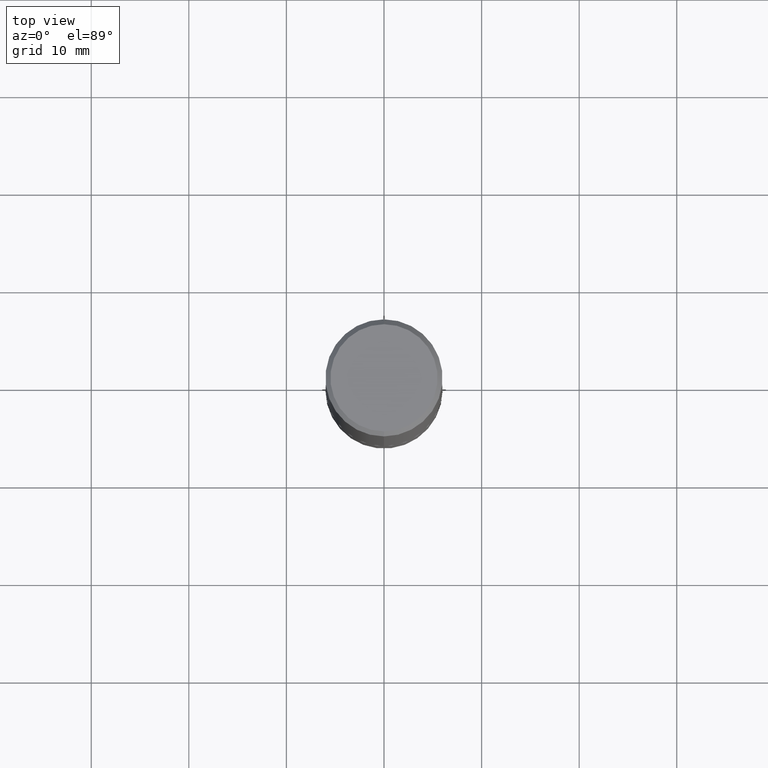
[diagram: clean part render]
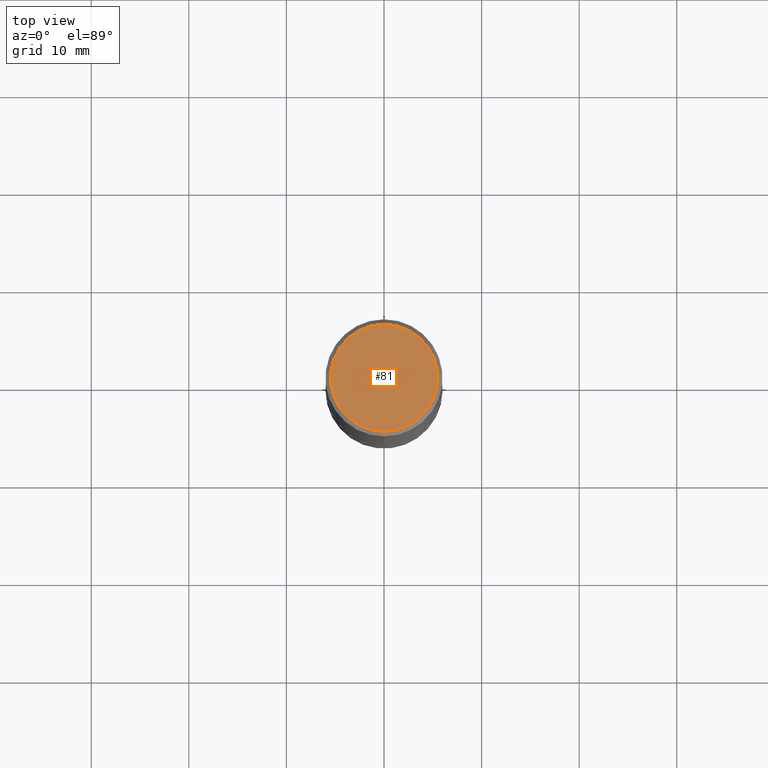
[diagram: same view with one face highlighted and labeled with its STEP entity id]
A machine part, top view. The second image highlights one B-rep face of the part: STEP entity #81.
In plain terms, the highlighted planar face has unit normal (0, -0, -1).
Its self-contained STEP definition (entity closure, byte-faithful):
#5 = EDGE_CURVE ( 'NONE', #322, #269, #369, .T. ) ;
#7 = PLANE ( 'NONE',  #161 ) ;
#26 = DIRECTION ( 'NONE',  ( -6.982962677686265922E-15, -1.000000000000000000, 3.497445496739398544E-15 ) ) ;
#33 = DIRECTION ( 'NONE',  ( 2.441304056985800106E-29, -3.497445496739398544E-15, -1.000000000000000000 ) ) ;
#39 = DIRECTION ( 'NONE',  ( 6.982962677686265922E-15, 1.000000000000000000, -3.497445496739398544E-15 ) ) ;
#81 = ADVANCED_FACE ( 'NONE', ( #299 ), #7, .F. ) ;
#93 = AXIS2_PLACEMENT_3D ( 'NONE', #260, #349, #26 ) ;
#108 = CIRCLE ( 'NONE', #135, 0.2162000000000003086 ) ;
#115 = CARTESIAN_POINT ( 'NONE',  ( -1.551844647095920733E-15, -0.2162000000000003086, 3.988821181637944027E-16 ) ) ;
#135 = AXIS2_PLACEMENT_3D ( 'NONE', #192, #159, #246 ) ;
#159 = DIRECTION ( 'NONE',  ( -2.441304056985800386E-29, 3.497445496739398544E-15, 1.000000000000000000 ) ) ;
#161 = AXIS2_PLACEMENT_3D ( 'NONE', #307, #33, #39 ) ;
#192 = CARTESIAN_POINT ( 'NONE',  ( 8.721939543834456927E-45, -1.249516957673843909E-30, -3.572655982312647301E-16 ) ) ;
#246 = DIRECTION ( 'NONE',  ( -6.982962677686265922E-15, -1.000000000000000000, 3.497445496739398544E-15 ) ) ;
#260 = CARTESIAN_POINT ( 'NONE',  ( 8.721939543834456927E-45, -1.249516957673843909E-30, -3.572655982312647301E-16 ) ) ;
#269 = VERTEX_POINT ( 'NONE', #279 ) ;
#279 = CARTESIAN_POINT ( 'NONE',  ( 1.579546157692634608E-15, 0.2162000000000003086, -1.113413314626323764E-15 ) ) ;
#292 = ORIENTED_EDGE ( 'NONE', *, *, #321, .T. ) ;
#299 = FACE_OUTER_BOUND ( 'NONE', #350, .T. ) ;
#307 = CARTESIAN_POINT ( 'NONE',  ( 1.509716530915772887E-15, 0.2162000000000003086, -9.347805155106912760E-16 ) ) ;
#321 = EDGE_CURVE ( 'NONE', #269, #322, #108, .T. ) ;
#322 = VERTEX_POINT ( 'NONE', #115 ) ;
#349 = DIRECTION ( 'NONE',  ( -2.441304056985800386E-29, 3.497445496739398544E-15, 1.000000000000000000 ) ) ;
#350 = EDGE_LOOP ( 'NONE', ( #292, #359 ) ) ;
#359 = ORIENTED_EDGE ( 'NONE', *, *, #5, .T. ) ;
#369 = CIRCLE ( 'NONE', #93, 0.2162000000000003086 ) ;